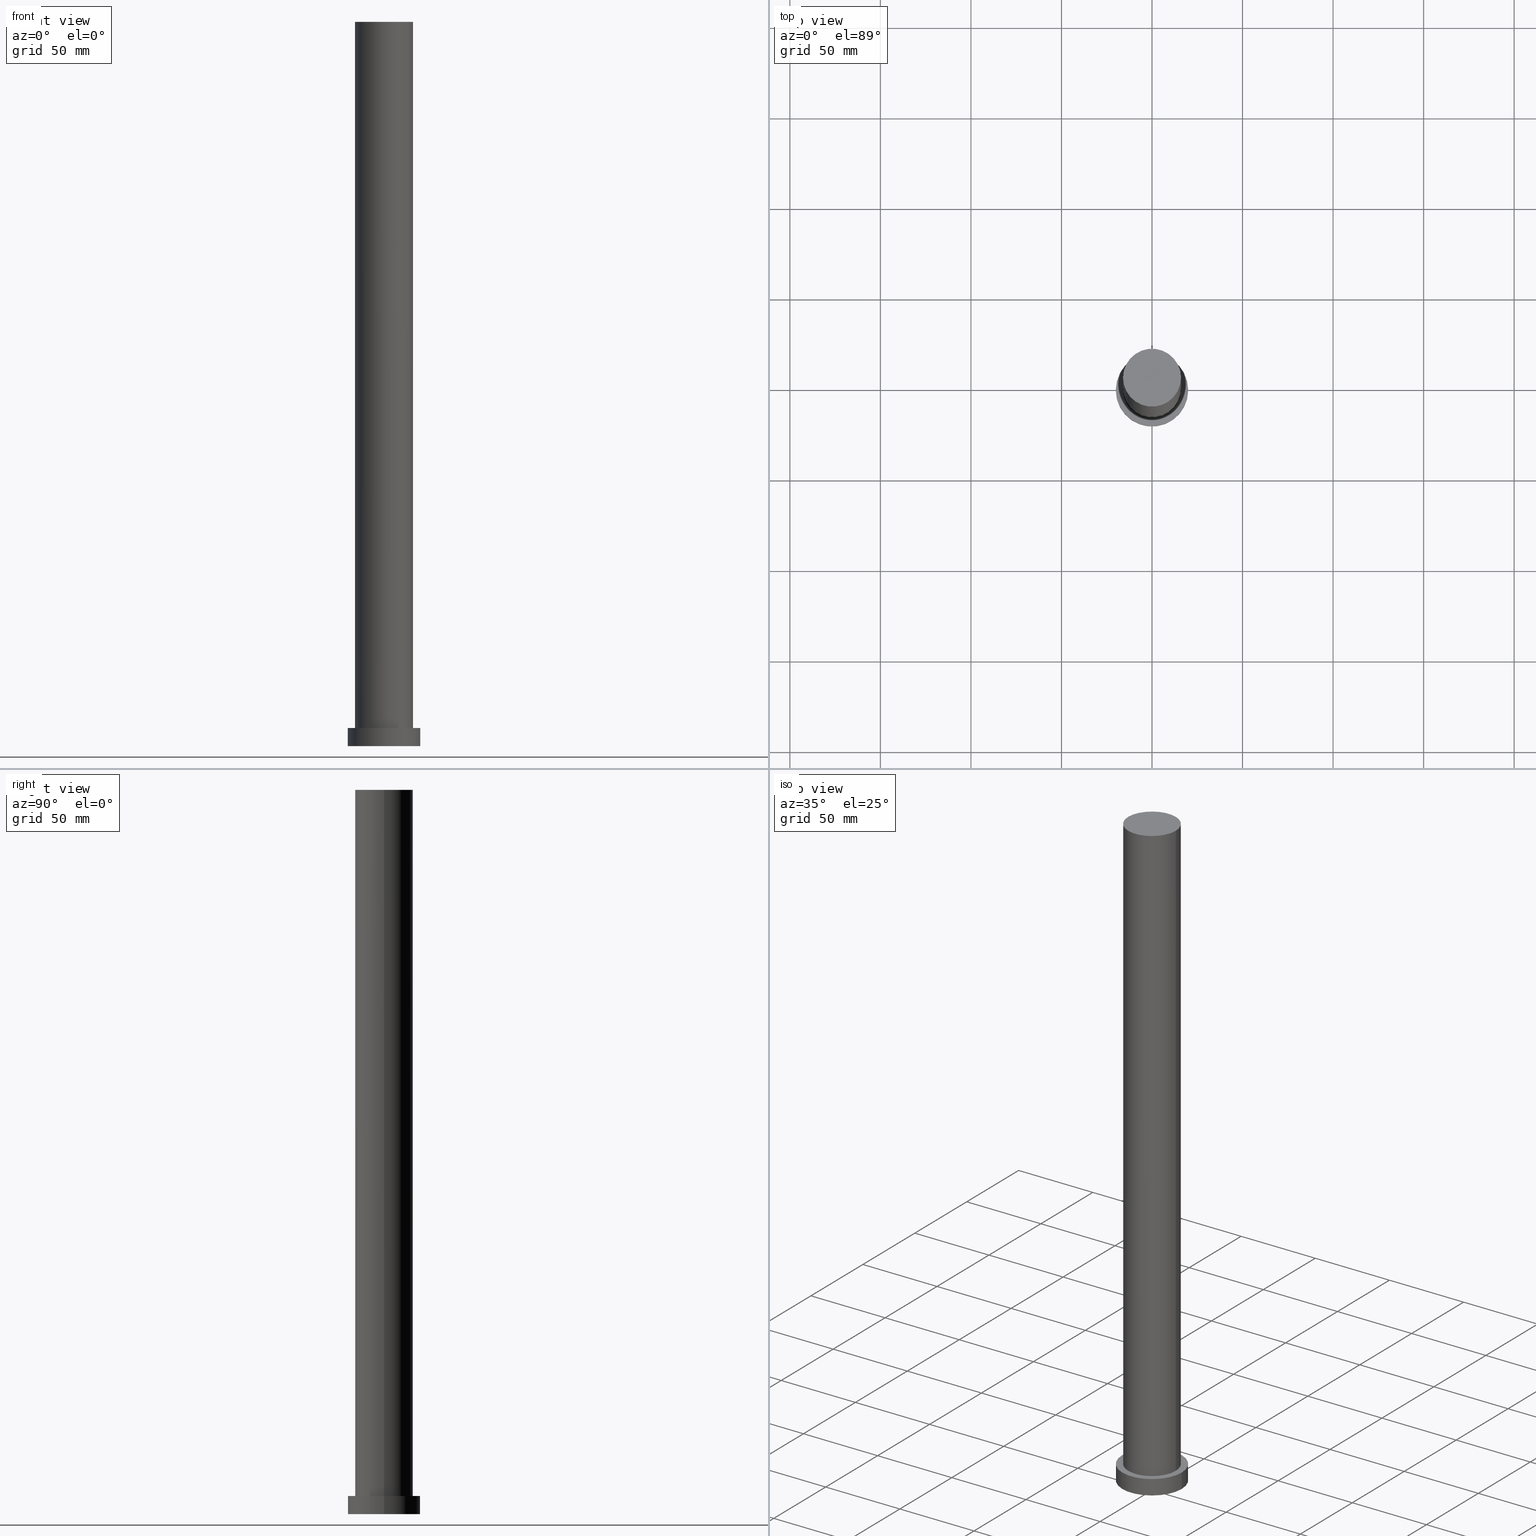
[diagram: canonical four-view strip — front | top / right | iso, engineering-drawing reading convention]
A machine part, canonical four-view strip (front | top / right | iso — engineering-drawing reading convention). The complete STEP part file that produces these views, byte-faithful:
ISO-10303-21;
HEADER;
FILE_DESCRIPTION (( 'STEP AP203' ),
    '1' );
FILE_NAME ('2702.STEP',
    '2023-02-12T10:26:00',
    ( '' ),
    ( '' ),
    'SwSTEP 2.0',
    'SolidWorks 2019',
    '' );
FILE_SCHEMA (( 'CONFIG_CONTROL_DESIGN' ));
ENDSEC;

DATA;
#1 = LINE ( 'NONE', #216, #3 ) ;
#2 = PLANE ( 'NONE',  #54 ) ;
#3 = VECTOR ( 'NONE', #98, 1000.000000000000000 ) ;
#4 = EDGE_CURVE ( 'NONE', #109, #231, #76, .T. ) ;
#5 = DIRECTION ( 'NONE',  ( -0.000000000000000000, -0.000000000000000000, -1.000000000000000000 ) ) ;
#6 = CALENDAR_DATE ( 2023, 12, 2 ) ;
#7 = APPLICATION_CONTEXT ( 'configuration controlled 3d designs of mechanical parts and assemblies' ) ;
#8 = EDGE_LOOP ( 'NONE', ( #35, #251 ) ) ;
#9 = DATE_AND_TIME ( #52, #132 ) ;
#10 = COORDINATED_UNIVERSAL_TIME_OFFSET ( 1, 0, .AHEAD. ) ;
#11 = CARTESIAN_POINT ( 'NONE',  ( 0.000000000000000000, 0.000000000000000000, 0.000000000000000000 ) ) ;
#12 = VERTEX_POINT ( 'NONE', #194 ) ;
#13 = VECTOR ( 'NONE', #250, 1000.000000000000000 ) ;
#14 = CARTESIAN_POINT ( 'NONE',  ( -16.00000000000000000, 0.000000000000000000, 10.00000000000000000 ) ) ;
#15 = AXIS2_PLACEMENT_3D ( 'NONE', #136, #115, #164 ) ;
#16 = EDGE_CURVE ( 'NONE', #123, #74, #112, .T. ) ;
#17 = CARTESIAN_POINT ( 'NONE',  ( 0.000000000000000000, 0.000000000000000000, 0.000000000000000000 ) ) ;
#18 = VERTEX_POINT ( 'NONE', #14 ) ;
#19 = AXIS2_PLACEMENT_3D ( 'NONE', #134, #214, #89 ) ;
#20 = CYLINDRICAL_SURFACE ( 'NONE', #26, 20.00000000000000000 ) ;
#21 = AXIS2_PLACEMENT_3D ( 'NONE', #213, #195, #233 ) ;
#22 = FACE_OUTER_BOUND ( 'NONE', #67, .T. ) ;
#23 = CARTESIAN_POINT ( 'NONE',  ( 0.000000000000000000, 0.000000000000000000, 400.0000000000000000 ) ) ;
#24 = DIRECTION ( 'NONE',  ( 0.000000000000000000, 0.000000000000000000, 1.000000000000000000 ) ) ;
#25 = LOCAL_TIME ( 11, 26, 0.000000000000000000, #208 ) ;
#26 = AXIS2_PLACEMENT_3D ( 'NONE', #219, #158, #93 ) ;
#27 = ORIENTED_EDGE ( 'NONE', *, *, #84, .F. ) ;
#28 = APPROVAL_DATE_TIME ( #205, #210 ) ;
#29 = AXIS2_PLACEMENT_3D ( 'NONE', #221, #203, #255 ) ;
#30 = PERSON_AND_ORGANIZATION_ROLE ( 'design_owner' ) ;
#31 = APPROVAL_ROLE ( '' ) ;
#32 = VECTOR ( 'NONE', #5, 1000.000000000000000 ) ;
#33 = ORIENTED_EDGE ( 'NONE', *, *, #227, .T. ) ;
#34 = MANIFOLD_SOLID_BREP ( 'P�idat vysunut�m3', #243 ) ;
#35 = ORIENTED_EDGE ( 'NONE', *, *, #105, .F. ) ;
#36 = ADVANCED_FACE ( 'NONE', ( #38 ), #73, .F. ) ;
#37 = ORIENTED_EDGE ( 'NONE', *, *, #84, .T. ) ;
#38 = FACE_OUTER_BOUND ( 'NONE', #8, .T. ) ;
#39 = APPROVAL_PERSON_ORGANIZATION ( #68, #222, #31 ) ;
#40 = DIRECTION ( 'NONE',  ( 0.000000000000000000, 0.000000000000000000, 1.000000000000000000 ) ) ;
#41 = CARTESIAN_POINT ( 'NONE',  ( -20.00000000000000000, 0.000000000000000000, 0.000000000000000000 ) ) ;
#42 = DIRECTION ( 'NONE',  ( 1.000000000000000000, 0.000000000000000000, 0.000000000000000000 ) ) ;
#43 = VECTOR ( 'NONE', #64, 1000.000000000000000 ) ;
#44 = AXIS2_PLACEMENT_3D ( 'NONE', #63, #83, #190 ) ;
#45 =( LENGTH_UNIT ( ) NAMED_UNIT ( * ) SI_UNIT ( .MILLI., .METRE. ) );
#46 = PRODUCT_DEFINITION ( 'NEZN�M�', '', #179, #138 ) ;
#47 =( NAMED_UNIT ( * ) PLANE_ANGLE_UNIT ( ) SI_UNIT ( $, .RADIAN. ) );
#48 = PERSON_AND_ORGANIZATION_ROLE ( 'creator' ) ;
#49 = ORIENTED_EDGE ( 'NONE', *, *, #202, .F. ) ;
#50 = PERSON_AND_ORGANIZATION ( #242, #133 ) ;
#51 = EDGE_LOOP ( 'NONE', ( #254, #100, #88, #53 ) ) ;
#52 = CALENDAR_DATE ( 2023, 12, 2 ) ;
#53 = ORIENTED_EDGE ( 'NONE', *, *, #105, .T. ) ;
#54 = AXIS2_PLACEMENT_3D ( 'NONE', #140, #199, #95 ) ;
#55 = ORIENTED_EDGE ( 'NONE', *, *, #193, .F. ) ;
#56 = CC_DESIGN_PERSON_AND_ORGANIZATION_ASSIGNMENT ( #144, #104, ( #96 ) ) ;
#57 = FACE_BOUND ( 'NONE', #111, .T. ) ;
#58 = EDGE_LOOP ( 'NONE', ( #211, #33 ) ) ;
#59 = CYLINDRICAL_SURFACE ( 'NONE', #19, 20.00000000000000000 ) ;
#60 = CARTESIAN_POINT ( 'NONE',  ( 16.00000000000000000, 1.959434878635765131E-15, 400.0000000000000000 ) ) ;
#61 = DIRECTION ( 'NONE',  ( 0.000000000000000000, 0.000000000000000000, 1.000000000000000000 ) ) ;
#62 = APPROVAL ( #148, 'NEUR�EN�' ) ;
#63 = CARTESIAN_POINT ( 'NONE',  ( 0.000000000000000000, 0.000000000000000000, 0.000000000000000000 ) ) ;
#64 = DIRECTION ( 'NONE',  ( -0.000000000000000000, -0.000000000000000000, -1.000000000000000000 ) ) ;
#65 = APPROVAL_PERSON_ORGANIZATION ( #81, #210, #245 ) ;
#66 = CALENDAR_DATE ( 2023, 12, 2 ) ;
#67 = EDGE_LOOP ( 'NONE', ( #55, #129, #147, #151 ) ) ;
#68 = PERSON_AND_ORGANIZATION ( #242, #133 ) ;
#69 = PERSON_AND_ORGANIZATION ( #242, #133 ) ;
#70 = SHAPE_DEFINITION_REPRESENTATION ( #118, #97 ) ;
#71 = DIRECTION ( 'NONE',  ( 0.000000000000000000, 0.000000000000000000, 1.000000000000000000 ) ) ;
#72 = ORIENTED_EDGE ( 'NONE', *, *, #16, .F. ) ;
#73 = PLANE ( 'NONE',  #241 ) ;
#74 = VERTEX_POINT ( 'NONE', #92 ) ;
#75 = AXIS2_PLACEMENT_3D ( 'NONE', #23, #24, #42 ) ;
#76 = LINE ( 'NONE', #110, #13 ) ;
#77 = DIRECTION ( 'NONE',  ( -0.000000000000000000, -0.000000000000000000, -1.000000000000000000 ) ) ;
#78 = CYLINDRICAL_SURFACE ( 'NONE', #128, 16.00000000000000000 ) ;
#79 = CARTESIAN_POINT ( 'NONE',  ( 0.000000000000000000, 0.000000000000000000, 400.0000000000000000 ) ) ;
#80 = CIRCLE ( 'NONE', #149, 20.00000000000000000 ) ;
#81 = PERSON_AND_ORGANIZATION ( #242, #133 ) ;
#82 = APPLICATION_CONTEXT ( 'configuration controlled 3d designs of mechanical parts and assemblies' ) ;
#83 = DIRECTION ( 'NONE',  ( 0.000000000000000000, 0.000000000000000000, 1.000000000000000000 ) ) ;
#84 = EDGE_CURVE ( 'NONE', #178, #18, #249, .T. ) ;
#85 = PERSON_AND_ORGANIZATION ( #242, #133 ) ;
#86 = CIRCLE ( 'NONE', #15, 20.00000000000000000 ) ;
#87 = PERSON_AND_ORGANIZATION ( #242, #133 ) ;
#88 = ORIENTED_EDGE ( 'NONE', *, *, #4, .T. ) ;
#89 = DIRECTION ( 'NONE',  ( -1.000000000000000000, 0.000000000000000000, 0.000000000000000000 ) ) ;
#90 = DIRECTION ( 'NONE',  ( 0.000000000000000000, 0.000000000000000000, 1.000000000000000000 ) ) ;
#91 = DIRECTION ( 'NONE',  ( 1.000000000000000000, 0.000000000000000000, 0.000000000000000000 ) ) ;
#92 = CARTESIAN_POINT ( 'NONE',  ( 16.00000000000000000, 1.959434878635765131E-15, 400.0000000000000000 ) ) ;
#93 = DIRECTION ( 'NONE',  ( -1.000000000000000000, 0.000000000000000000, 0.000000000000000000 ) ) ;
#94 = EDGE_CURVE ( 'NONE', #12, #231, #80, .T. ) ;
#95 = DIRECTION ( 'NONE',  ( 1.000000000000000000, 0.000000000000000000, -0.000000000000000000 ) ) ;
#96 = SECURITY_CLASSIFICATION ( '', '', #247 ) ;
#97 = ADVANCED_BREP_SHAPE_REPRESENTATION ( '2702', ( #34, #44 ), #142 ) ;
#98 = DIRECTION ( 'NONE',  ( -0.000000000000000000, -0.000000000000000000, -1.000000000000000000 ) ) ;
#99 = PERSON_AND_ORGANIZATION ( #242, #133 ) ;
#100 = ORIENTED_EDGE ( 'NONE', *, *, #175, .F. ) ;
#101 = CIRCLE ( 'NONE', #137, 16.00000000000000000 ) ;
#102 = APPLICATION_PROTOCOL_DEFINITION ( 'international standard', 'config_control_design', 1994, #7 ) ;
#103 = AXIS2_PLACEMENT_3D ( 'NONE', #180, #77, #117 ) ;
#104 = PERSON_AND_ORGANIZATION_ROLE ( 'classification_officer' ) ;
#105 = EDGE_CURVE ( 'NONE', #231, #12, #217, .T. ) ;
#106 = APPROVAL_DATE_TIME ( #120, #222 ) ;
#107 = PERSON_AND_ORGANIZATION_ROLE ( 'design_supplier' ) ;
#108 = CC_DESIGN_APPROVAL ( #222, ( #179 ) ) ;
#109 = VERTEX_POINT ( 'NONE', #177 ) ;
#110 = CARTESIAN_POINT ( 'NONE',  ( -20.00000000000000000, 0.000000000000000000, 10.00000000000000000 ) ) ;
#111 = EDGE_LOOP ( 'NONE', ( #206, #27 ) ) ;
#112 = CIRCLE ( 'NONE', #21, 16.00000000000000000 ) ;
#113 = DIRECTION ( 'NONE',  ( 1.000000000000000000, 0.000000000000000000, -0.000000000000000000 ) ) ;
#114 = CARTESIAN_POINT ( 'NONE',  ( -16.00000000000000000, 0.000000000000000000, 400.0000000000000000 ) ) ;
#115 = DIRECTION ( 'NONE',  ( 0.000000000000000000, 0.000000000000000000, 1.000000000000000000 ) ) ;
#116 = CYLINDRICAL_SURFACE ( 'NONE', #103, 16.00000000000000000 ) ;
#117 = DIRECTION ( 'NONE',  ( -1.000000000000000000, 0.000000000000000000, 0.000000000000000000 ) ) ;
#118 = PRODUCT_DEFINITION_SHAPE ( 'NONE', 'NONE',  #46 ) ;
#119 = ADVANCED_FACE ( 'NONE', ( #253 ), #59, .T. ) ;
#120 = DATE_AND_TIME ( #226, #191 ) ;
#121 = COORDINATED_UNIVERSAL_TIME_OFFSET ( 1, 0, .AHEAD. ) ;
#122 = DATE_TIME_ROLE ( 'classification_date' ) ;
#123 = VERTEX_POINT ( 'NONE', #114 ) ;
#124 = COORDINATED_UNIVERSAL_TIME_OFFSET ( 1, 0, .AHEAD. ) ;
#125 = EDGE_LOOP ( 'NONE', ( #154, #236 ) ) ;
#126 = PERSON_AND_ORGANIZATION_ROLE ( 'creator' ) ;
#127 = ORIENTED_EDGE ( 'NONE', *, *, #202, .T. ) ;
#128 = AXIS2_PLACEMENT_3D ( 'NONE', #79, #163, #181 ) ;
#129 = ORIENTED_EDGE ( 'NONE', *, *, #215, .T. ) ;
#130 = ORIENTED_EDGE ( 'NONE', *, *, #162, .F. ) ;
#131 = ORIENTED_EDGE ( 'NONE', *, *, #143, .T. ) ;
#132 = LOCAL_TIME ( 11, 26, 0.000000000000000000, #124 ) ;
#133 = ORGANIZATION ( 'NEUR�EN�', 'NEUR�EN�', '' ) ;
#134 = CARTESIAN_POINT ( 'NONE',  ( 0.000000000000000000, 0.000000000000000000, 10.00000000000000000 ) ) ;
#135 = APPLICATION_PROTOCOL_DEFINITION ( 'international standard', 'config_control_design', 1994, #82 ) ;
#136 = CARTESIAN_POINT ( 'NONE',  ( 0.000000000000000000, 0.000000000000000000, 10.00000000000000000 ) ) ;
#137 = AXIS2_PLACEMENT_3D ( 'NONE', #173, #150, #174 ) ;
#138 = DESIGN_CONTEXT ( 'detailed design', #7, 'design' ) ;
#139 = FACE_OUTER_BOUND ( 'NONE', #229, .T. ) ;
#140 = CARTESIAN_POINT ( 'NONE',  ( 0.000000000000000000, 0.000000000000000000, 400.0000000000000000 ) ) ;
#141 =( NAMED_UNIT ( * ) SI_UNIT ( $, .STERADIAN. ) SOLID_ANGLE_UNIT ( ) );
#142 =( GEOMETRIC_REPRESENTATION_CONTEXT ( 3 ) GLOBAL_UNCERTAINTY_ASSIGNED_CONTEXT ( ( #212 ) ) GLOBAL_UNIT_ASSIGNED_CONTEXT ( ( #45, #47, #141 ) ) REPRESENTATION_CONTEXT ( 'NONE', 'WORKASPACE' ) );
#143 = EDGE_CURVE ( 'NONE', #18, #178, #101, .T. ) ;
#144 = PERSON_AND_ORGANIZATION ( #242, #133 ) ;
#145 = AXIS2_PLACEMENT_3D ( 'NONE', #17, #71, #91 ) ;
#146 = COORDINATED_UNIVERSAL_TIME_OFFSET ( 1, 0, .AHEAD. ) ;
#147 = ORIENTED_EDGE ( 'NONE', *, *, #94, .T. ) ;
#148 = APPROVAL_STATUS ( 'not_yet_approved' ) ;
#149 = AXIS2_PLACEMENT_3D ( 'NONE', #157, #40, #248 ) ;
#150 = DIRECTION ( 'NONE',  ( 0.000000000000000000, 0.000000000000000000, 1.000000000000000000 ) ) ;
#151 = ORIENTED_EDGE ( 'NONE', *, *, #4, .F. ) ;
#152 = CC_DESIGN_DATE_AND_TIME_ASSIGNMENT ( #188, #122, ( #96 ) ) ;
#153 = CARTESIAN_POINT ( 'NONE',  ( 0.000000000000000000, 0.000000000000000000, 10.00000000000000000 ) ) ;
#154 = ORIENTED_EDGE ( 'NONE', *, *, #175, .T. ) ;
#155 = CC_DESIGN_APPROVAL ( #210, ( #96 ) ) ;
#156 = ADVANCED_FACE ( 'NONE', ( #57, #198 ), #182, .T. ) ;
#157 = CARTESIAN_POINT ( 'NONE',  ( 0.000000000000000000, 0.000000000000000000, 0.000000000000000000 ) ) ;
#158 = DIRECTION ( 'NONE',  ( -0.000000000000000000, -0.000000000000000000, -1.000000000000000000 ) ) ;
#159 = PRODUCT ( '2702', '2702', '', ( #230 ) ) ;
#160 = CIRCLE ( 'NONE', #75, 16.00000000000000000 ) ;
#161 = CARTESIAN_POINT ( 'NONE',  ( 0.000000000000000000, 0.000000000000000000, 10.00000000000000000 ) ) ;
#162 = EDGE_CURVE ( 'NONE', #74, #178, #237, .T. ) ;
#163 = DIRECTION ( 'NONE',  ( -0.000000000000000000, -0.000000000000000000, -1.000000000000000000 ) ) ;
#164 = DIRECTION ( 'NONE',  ( 1.000000000000000000, 0.000000000000000000, 0.000000000000000000 ) ) ;
#165 = AXIS2_PLACEMENT_3D ( 'NONE', #161, #61, #240 ) ;
#166 = AXIS2_PLACEMENT_3D ( 'NONE', #153, #209, #196 ) ;
#167 = APPROVAL_STATUS ( 'not_yet_approved' ) ;
#168 = CC_DESIGN_PERSON_AND_ORGANIZATION_ASSIGNMENT ( #99, #30, ( #159 ) ) ;
#169 = DATE_TIME_ROLE ( 'creation_date' ) ;
#170 = DATE_AND_TIME ( #225, #223 ) ;
#171 = LOCAL_TIME ( 11, 26, 0.000000000000000000, #10 ) ;
#172 = ADVANCED_FACE ( 'NONE', ( #185 ), #116, .T. ) ;
#173 = CARTESIAN_POINT ( 'NONE',  ( 0.000000000000000000, 0.000000000000000000, 10.00000000000000000 ) ) ;
#174 = DIRECTION ( 'NONE',  ( 1.000000000000000000, 0.000000000000000000, 0.000000000000000000 ) ) ;
#175 = EDGE_CURVE ( 'NONE', #109, #235, #218, .T. ) ;
#176 = ORIENTED_EDGE ( 'NONE', *, *, #162, .T. ) ;
#177 = CARTESIAN_POINT ( 'NONE',  ( -20.00000000000000000, 0.000000000000000000, 10.00000000000000000 ) ) ;
#178 = VERTEX_POINT ( 'NONE', #239 ) ;
#179 = PRODUCT_DEFINITION_FORMATION_WITH_SPECIFIED_SOURCE ( 'LIBOVOLN�', '', #159, .NOT_KNOWN. ) ;
#180 = CARTESIAN_POINT ( 'NONE',  ( 0.000000000000000000, 0.000000000000000000, 400.0000000000000000 ) ) ;
#181 = DIRECTION ( 'NONE',  ( -1.000000000000000000, 0.000000000000000000, 0.000000000000000000 ) ) ;
#182 = PLANE ( 'NONE',  #165 ) ;
#183 = CC_DESIGN_PERSON_AND_ORGANIZATION_ASSIGNMENT ( #50, #126, ( #46 ) ) ;
#184 = APPROVAL_PERSON_ORGANIZATION ( #85, #62, #187 ) ;
#185 = FACE_OUTER_BOUND ( 'NONE', #232, .T. ) ;
#186 = LINE ( 'NONE', #201, #32 ) ;
#187 = APPROVAL_ROLE ( '' ) ;
#188 = DATE_AND_TIME ( #6, #171 ) ;
#189 = CC_DESIGN_PERSON_AND_ORGANIZATION_ASSIGNMENT ( #87, #48, ( #179 ) ) ;
#190 = DIRECTION ( 'NONE',  ( 1.000000000000000000, 0.000000000000000000, 0.000000000000000000 ) ) ;
#191 = LOCAL_TIME ( 11, 26, 0.000000000000000000, #121 ) ;
#192 = ORIENTED_EDGE ( 'NONE', *, *, #227, .F. ) ;
#193 = EDGE_CURVE ( 'NONE', #235, #109, #86, .T. ) ;
#194 = CARTESIAN_POINT ( 'NONE',  ( 20.00000000000000000, 2.449293598294706513E-15, 0.000000000000000000 ) ) ;
#195 = DIRECTION ( 'NONE',  ( 0.000000000000000000, 0.000000000000000000, 1.000000000000000000 ) ) ;
#196 = DIRECTION ( 'NONE',  ( 1.000000000000000000, 0.000000000000000000, 0.000000000000000000 ) ) ;
#197 = CC_DESIGN_PERSON_AND_ORGANIZATION_ASSIGNMENT ( #69, #107, ( #179 ) ) ;
#198 = FACE_OUTER_BOUND ( 'NONE', #125, .T. ) ;
#199 = DIRECTION ( 'NONE',  ( 0.000000000000000000, 0.000000000000000000, 1.000000000000000000 ) ) ;
#200 = CC_DESIGN_APPROVAL ( #62, ( #46 ) ) ;
#201 = CARTESIAN_POINT ( 'NONE',  ( 20.00000000000000000, 2.449293598294706513E-15, 10.00000000000000000 ) ) ;
#202 = EDGE_CURVE ( 'NONE', #123, #18, #1, .T. ) ;
#203 = DIRECTION ( 'NONE',  ( 0.000000000000000000, 0.000000000000000000, 1.000000000000000000 ) ) ;
#204 = FACE_OUTER_BOUND ( 'NONE', #58, .T. ) ;
#205 = DATE_AND_TIME ( #66, #25 ) ;
#206 = ORIENTED_EDGE ( 'NONE', *, *, #143, .F. ) ;
#207 = PRODUCT_RELATED_PRODUCT_CATEGORY ( 'detail', '', ( #159 ) ) ;
#208 = COORDINATED_UNIVERSAL_TIME_OFFSET ( 1, 0, .AHEAD. ) ;
#209 = DIRECTION ( 'NONE',  ( 0.000000000000000000, 0.000000000000000000, 1.000000000000000000 ) ) ;
#210 = APPROVAL ( #167, 'NEUR�EN�' ) ;
#211 = ORIENTED_EDGE ( 'NONE', *, *, #16, .T. ) ;
#212 = UNCERTAINTY_MEASURE_WITH_UNIT (LENGTH_MEASURE( 1.000000000000000082E-05 ), #45, 'distance_accuracy_value', 'NONE');
#213 = CARTESIAN_POINT ( 'NONE',  ( 0.000000000000000000, 0.000000000000000000, 400.0000000000000000 ) ) ;
#214 = DIRECTION ( 'NONE',  ( -0.000000000000000000, -0.000000000000000000, -1.000000000000000000 ) ) ;
#215 = EDGE_CURVE ( 'NONE', #235, #12, #186, .T. ) ;
#216 = CARTESIAN_POINT ( 'NONE',  ( -16.00000000000000000, 0.000000000000000000, 400.0000000000000000 ) ) ;
#217 = CIRCLE ( 'NONE', #145, 20.00000000000000000 ) ;
#218 = CIRCLE ( 'NONE', #29, 20.00000000000000000 ) ;
#219 = CARTESIAN_POINT ( 'NONE',  ( 0.000000000000000000, 0.000000000000000000, 10.00000000000000000 ) ) ;
#220 = CARTESIAN_POINT ( 'NONE',  ( 20.00000000000000000, 2.449293598294706513E-15, 10.00000000000000000 ) ) ;
#221 = CARTESIAN_POINT ( 'NONE',  ( 0.000000000000000000, 0.000000000000000000, 10.00000000000000000 ) ) ;
#222 = APPROVAL ( #224, 'NEUR�EN�' ) ;
#223 = LOCAL_TIME ( 11, 26, 0.000000000000000000, #146 ) ;
#224 = APPROVAL_STATUS ( 'not_yet_approved' ) ;
#225 = CALENDAR_DATE ( 2023, 12, 2 ) ;
#226 = CALENDAR_DATE ( 2023, 12, 2 ) ;
#227 = EDGE_CURVE ( 'NONE', #74, #123, #160, .T. ) ;
#228 = APPROVAL_DATE_TIME ( #9, #62 ) ;
#229 = EDGE_LOOP ( 'NONE', ( #130, #72, #127, #131 ) ) ;
#230 = MECHANICAL_CONTEXT ( 'NONE', #82, 'mechanical' ) ;
#231 = VERTEX_POINT ( 'NONE', #41 ) ;
#232 = EDGE_LOOP ( 'NONE', ( #192, #176, #37, #49 ) ) ;
#233 = DIRECTION ( 'NONE',  ( 1.000000000000000000, 0.000000000000000000, 0.000000000000000000 ) ) ;
#234 = CC_DESIGN_DATE_AND_TIME_ASSIGNMENT ( #170, #169, ( #46 ) ) ;
#235 = VERTEX_POINT ( 'NONE', #220 ) ;
#236 = ORIENTED_EDGE ( 'NONE', *, *, #193, .T. ) ;
#237 = LINE ( 'NONE', #60, #43 ) ;
#238 = ADVANCED_FACE ( 'NONE', ( #139 ), #78, .T. ) ;
#239 = CARTESIAN_POINT ( 'NONE',  ( 16.00000000000000000, 1.959434878635765131E-15, 10.00000000000000000 ) ) ;
#240 = DIRECTION ( 'NONE',  ( 1.000000000000000000, 0.000000000000000000, -0.000000000000000000 ) ) ;
#241 = AXIS2_PLACEMENT_3D ( 'NONE', #11, #90, #113 ) ;
#242 = PERSON ( 'NEUR�EN�', 'NEUR�EN�', 'NEUR�EN�', ('NEUR�EN�'), ('NEUR�EN�'), ('NEUR�EN�') ) ;
#243 = CLOSED_SHELL ( 'NONE', ( #172, #246, #119, #156, #36, #238, #252 ) ) ;
#244 = CC_DESIGN_SECURITY_CLASSIFICATION ( #96, ( #179 ) ) ;
#245 = APPROVAL_ROLE ( '' ) ;
#246 = ADVANCED_FACE ( 'NONE', ( #22 ), #20, .T. ) ;
#247 = SECURITY_CLASSIFICATION_LEVEL ( 'unclassified' ) ;
#248 = DIRECTION ( 'NONE',  ( 1.000000000000000000, 0.000000000000000000, 0.000000000000000000 ) ) ;
#249 = CIRCLE ( 'NONE', #166, 16.00000000000000000 ) ;
#250 = DIRECTION ( 'NONE',  ( -0.000000000000000000, -0.000000000000000000, -1.000000000000000000 ) ) ;
#251 = ORIENTED_EDGE ( 'NONE', *, *, #94, .F. ) ;
#252 = ADVANCED_FACE ( 'NONE', ( #204 ), #2, .T. ) ;
#253 = FACE_OUTER_BOUND ( 'NONE', #51, .T. ) ;
#254 = ORIENTED_EDGE ( 'NONE', *, *, #215, .F. ) ;
#255 = DIRECTION ( 'NONE',  ( 1.000000000000000000, 0.000000000000000000, 0.000000000000000000 ) ) ;
ENDSEC;
END-ISO-10303-21;
